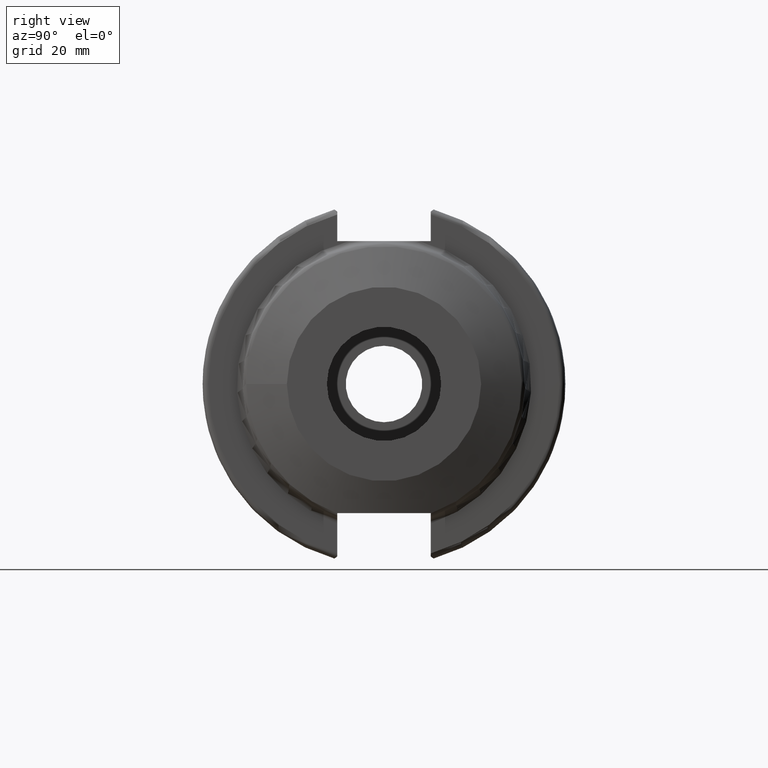
[diagram: clean part render]
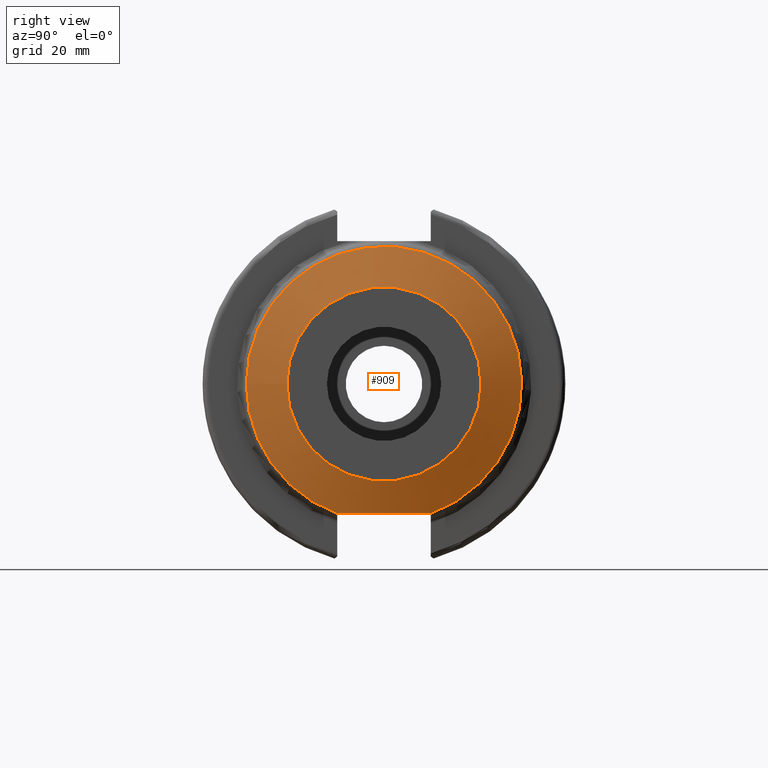
[diagram: same view with one face highlighted and labeled with its STEP entity id]
A machine part, right view. The second image highlights one B-rep face of the part: STEP entity #909.
In plain terms, the highlighted conical surface has half-angle 70 deg.
Its self-contained STEP definition (entity closure, byte-faithful):
#32=CONICAL_SURFACE('',#988,20.875,1.22173047639603);
#49=LINE('',#1426,#105);
#105=VECTOR('',#1107,20.875);
#152=(
BOUNDED_CURVE()
B_SPLINE_CURVE(2,(#1370,#1371,#1372),.UNSPECIFIED.,.F.,.F.)
B_SPLINE_CURVE_WITH_KNOTS((3,3),(0.824802954937105,0.829940681959425),
 .UNSPECIFIED.)
CURVE()
GEOMETRIC_REPRESENTATION_ITEM()
RATIONAL_B_SPLINE_CURVE((1.00293772416939,1.00283399884638,1.00272886731961))
REPRESENTATION_ITEM('')
);
#155=(
BOUNDED_CURVE()
B_SPLINE_CURVE(2,(#1428,#1429,#1430),.UNSPECIFIED.,.F.,.F.)
B_SPLINE_CURVE_WITH_KNOTS((3,3),(0.0617204608213506,0.0668581878436713),
 .UNSPECIFIED.)
CURVE()
GEOMETRIC_REPRESENTATION_ITEM()
RATIONAL_B_SPLINE_CURVE((1.00272886731959,1.00283399884636,1.00293772416936))
REPRESENTATION_ITEM('')
);
#156=(
BOUNDED_CURVE()
B_SPLINE_CURVE(2,(#1431,#1432,#1433),.UNSPECIFIED.,.F.,.F.)
B_SPLINE_CURVE_WITH_KNOTS((3,3),(0.17800588795542,1.84599868315646),
 .UNSPECIFIED.)
CURVE()
GEOMETRIC_REPRESENTATION_ITEM()
RATIONAL_B_SPLINE_CURVE((1.01526169581117,1.07987104755166,1.01526169581117))
REPRESENTATION_ITEM('')
);
#198=FACE_OUTER_BOUND('',#251,.T.);
#251=EDGE_LOOP('',(#634,#635,#636,#637,#638,#639,#640,#641));
#307=CIRCLE('',#984,24.0920201433257);
#308=CIRCLE('',#985,24.0920201433257);
#310=CIRCLE('',#989,17.);
#376=VERTEX_POINT('',#1341);
#377=VERTEX_POINT('',#1352);
#378=VERTEX_POINT('',#1354);
#380=VERTEX_POINT('',#1369);
#394=VERTEX_POINT('',#1424);
#395=VERTEX_POINT('',#1427);
#471=EDGE_CURVE('',#376,#377,#307,.T.);
#472=EDGE_CURVE('',#377,#378,#308,.T.);
#475=EDGE_CURVE('',#380,#378,#152,.T.);
#490=EDGE_CURVE('',#394,#394,#310,.T.);
#491=EDGE_CURVE('',#394,#377,#49,.T.);
#492=EDGE_CURVE('',#376,#395,#155,.T.);
#493=EDGE_CURVE('',#395,#380,#156,.T.);
#634=ORIENTED_EDGE('',*,*,#490,.F.);
#635=ORIENTED_EDGE('',*,*,#491,.T.);
#636=ORIENTED_EDGE('',*,*,#471,.F.);
#637=ORIENTED_EDGE('',*,*,#492,.T.);
#638=ORIENTED_EDGE('',*,*,#493,.T.);
#639=ORIENTED_EDGE('',*,*,#475,.T.);
#640=ORIENTED_EDGE('',*,*,#472,.F.);
#641=ORIENTED_EDGE('',*,*,#491,.F.);
#909=ADVANCED_FACE('',(#198),#32,.T.);
#984=AXIS2_PLACEMENT_3D('',#1353,#1086,#1087);
#985=AXIS2_PLACEMENT_3D('',#1355,#1088,#1089);
#988=AXIS2_PLACEMENT_3D('',#1423,#1103,#1104);
#989=AXIS2_PLACEMENT_3D('',#1425,#1105,#1106);
#1086=DIRECTION('center_axis',(-1.,0.,0.));
#1087=DIRECTION('ref_axis',(0.,1.11022302462516E-16,1.));
#1088=DIRECTION('center_axis',(-1.,0.,0.));
#1089=DIRECTION('ref_axis',(0.,1.11022302462516E-16,1.));
#1103=DIRECTION('center_axis',(-1.,0.,0.));
#1104=DIRECTION('ref_axis',(0.,1.,0.));
#1105=DIRECTION('center_axis',(1.,0.,0.));
#1106=DIRECTION('ref_axis',(0.,0.,-1.));
#1107=DIRECTION('',(-0.342020143325669,-0.939692620785908,-1.15079156022785E-16));
#1341=CARTESIAN_POINT('',(22.0187157670131,-8.19,-22.6572137427886));
#1352=CARTESIAN_POINT('',(22.0187157670131,-24.0920201433257,-2.95042153535173E-15));
#1353=CARTESIAN_POINT('Origin',(22.0187157670131,-1.19954077960946E-15,
0.));
#1354=CARTESIAN_POINT('',(22.0187157670131,8.19,-22.6572137427886));
#1355=CARTESIAN_POINT('Origin',(22.0187157670131,-1.19954077960946E-15,
0.));
#1369=CARTESIAN_POINT('',(22.0382968179477,8.19,-22.6));
#1370=CARTESIAN_POINT('Ctrl Pts',(22.0382968179477,8.19,-22.6));
#1371=CARTESIAN_POINT('Ctrl Pts',(22.0285186695704,8.19,-22.6285748955185));
#1372=CARTESIAN_POINT('Ctrl Pts',(22.0187157670131,8.19,-22.6572137427886));
#1423=CARTESIAN_POINT('Origin',(23.1896153422185,0.,0.));
#1424=CARTESIAN_POINT('',(24.6,-17.,-2.0818995585505E-15));
#1425=CARTESIAN_POINT('Origin',(24.6,0.,0.));
#1426=CARTESIAN_POINT('',(23.1896153422185,-20.875,-2.5564501932201E-15));
#1427=CARTESIAN_POINT('',(22.0382968179477,-8.19,-22.6));
#1428=CARTESIAN_POINT('Ctrl Pts',(22.0187157670131,-8.19,-22.6572137427886));
#1429=CARTESIAN_POINT('Ctrl Pts',(22.0285186695704,-8.19,-22.6285748955185));
#1430=CARTESIAN_POINT('Ctrl Pts',(22.0382968179477,-8.19,-22.6));
#1431=CARTESIAN_POINT('Ctrl Pts',(22.0382968179477,-8.19,-22.6));
#1432=CARTESIAN_POINT('Ctrl Pts',(23.053917032626,4.21884749357559E-14,
-22.6));
#1433=CARTESIAN_POINT('Ctrl Pts',(22.0382968179477,8.19,-22.6));